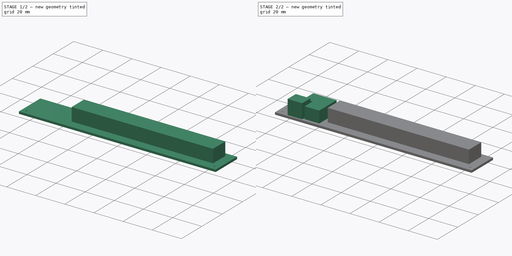
[diagram: build sequence overview — one tinted view per stage of 2, left to right]
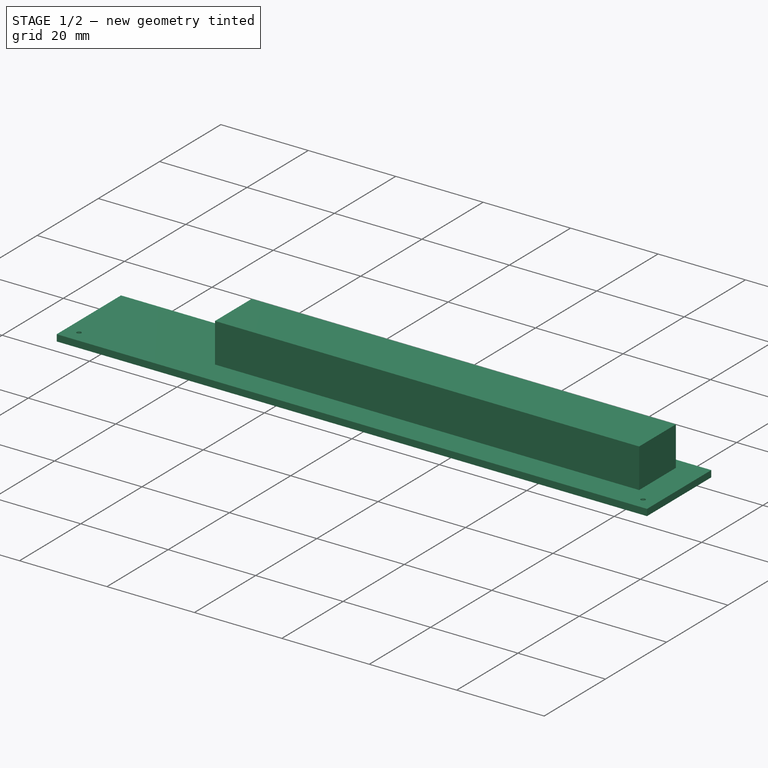
[diagram: stage 1 of 2 — iso view after this stage's code; geometry added in this stage tinted green]
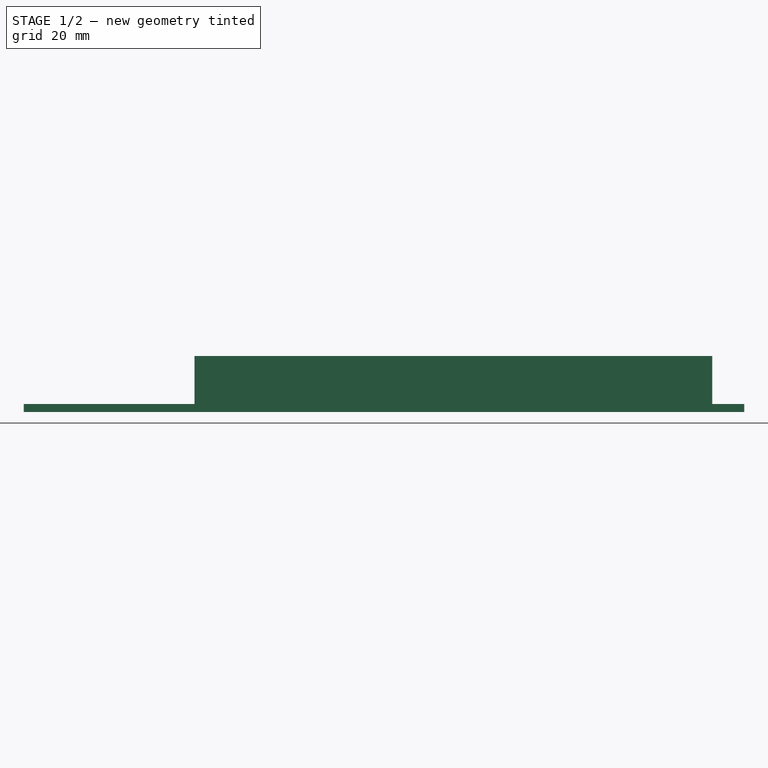
[diagram: stage 1 of 2 — front view after this stage's code; geometry added in this stage tinted green]
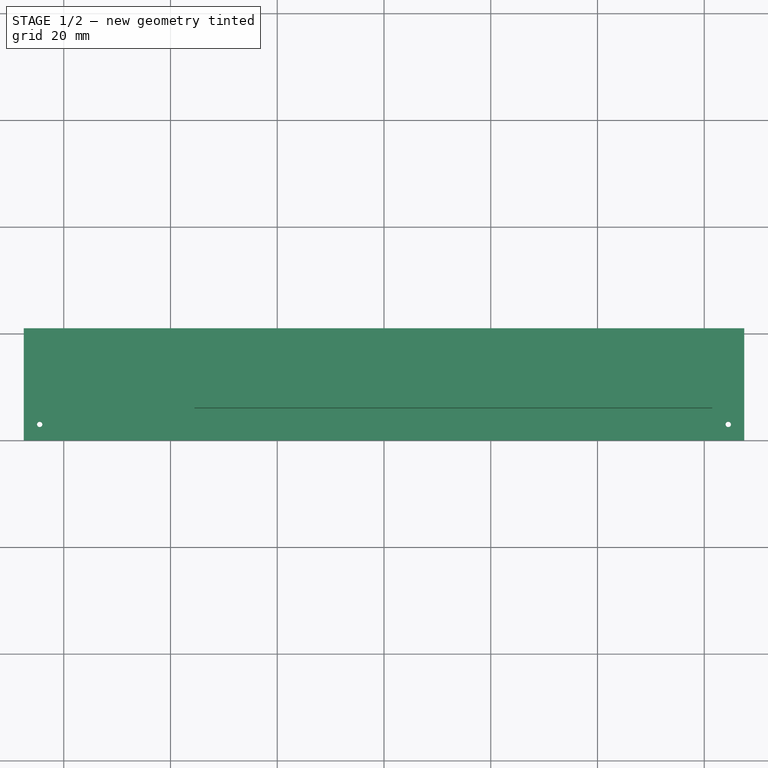
[diagram: stage 1 of 2 — top view after this stage's code; geometry added in this stage tinted green]
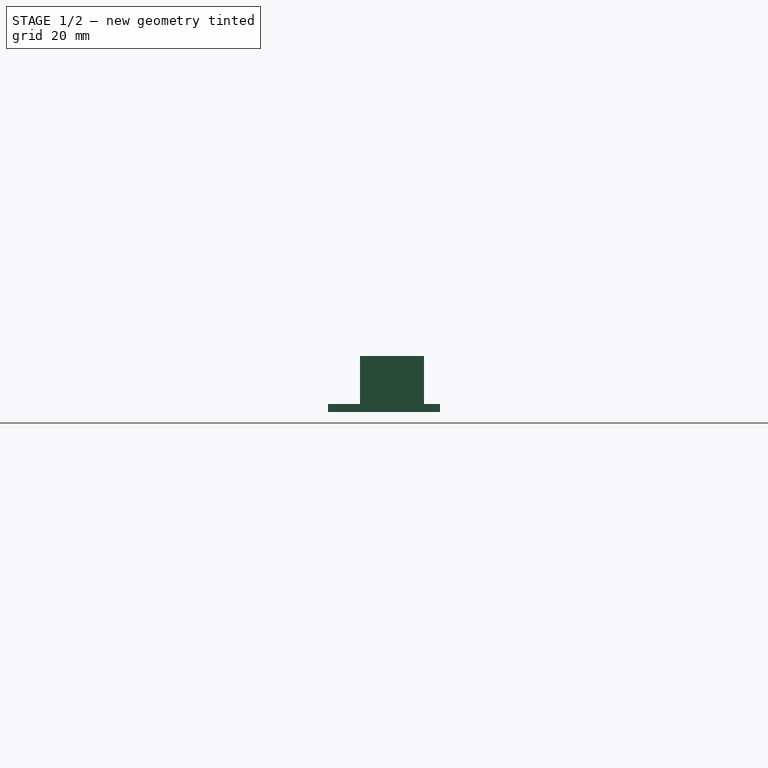
[diagram: stage 1 of 2 — right view after this stage's code; geometry added in this stage tinted green]
FCSTD DOCUMENT  (FreeCAD 0.19R)
Label: pianopcb
License: All rights reserved
LicenseURL: http://en.wikipedia.org/wiki/All_rights_reserved
objects: Sketcher::SketchObject×4, PartDesign::Pad×4, PartDesign::Body×1
note: 13 computed .brp shape members not serialized (recipe doc carries the construction recipe); baked Part::Feature solids carry a one-line shape summary decoded from their .brp

FEATURE [Sketcher::SketchObject] Sketch
  FullyConstrained = true
  MapMode = 5
  Support = -> [XY_Plane]
  sketch-geometry (6):
    g0: LineSegment StartX=-67.5 StartY=21 StartZ=0 EndX=67.5 EndY=21 EndZ=0
    g1: LineSegment StartX=67.5 StartY=21 StartZ=0 EndX=67.5 EndY=0 EndZ=0
    g2: LineSegment StartX=67.5 StartY=0 StartZ=0 EndX=-67.5 EndY=0 EndZ=0
    g3: LineSegment StartX=-67.5 StartY=0 StartZ=0 EndX=-67.5 EndY=21 EndZ=0
    g4: Circle CenterX=-64.5 CenterY=3 CenterZ=0 NormalX=0 NormalY=0 NormalZ=1 AngleXU=0 Radius=0.5
    g5: Circle CenterX=64.5 CenterY=3 CenterZ=0 NormalX=0 NormalY=0 NormalZ=1 AngleXU=0 Radius=0.5
  constraints (17):
    c: Coincident(g0,g1)
    c: Coincident(g1,g2)
    c: Coincident(g2,g3)
    c: Coincident(g3,g0)
    c: Horizontal(g0)
    c: Vertical(g1)
    c: Vertical(g3)
    c: PointOnObject(g2,g-1)
    c: Symmetric(g2,g1,g-2)
    c: DistanceX(g0,g0) = 135
    c: DistanceY(g1,g1) = 21
    c: Equal(g5,g4)
    c: Diameter(g5) = 1
    c: DistanceY(g2,g4) = 3
    c: DistanceX(g2,g4) = 3
    c: DistanceX(g5,g1) = 3
    c: DistanceY(g1,g5) = 3
FEATURE [PartDesign::Pad] Pad
  Direction = (1,1,1)
  Length = 1.5
  Length2 = 100
  Profile = -> Sketch
  Type = 0
FEATURE [Sketcher::SketchObject] Sketch001
  ExternalGeometry = -> [Pad]
  FullyConstrained = true
  MapMode = 5
  Placement = pos=(0,0,1.5) rot=(0,0,1;0rad)
  Support = -> [Pad]
  sketch-geometry (4):
    g0: LineSegment StartX=-35.5 StartY=18 StartZ=0 EndX=61.5 EndY=18 EndZ=0
    g1: LineSegment StartX=61.5 StartY=18 StartZ=0 EndX=61.5 EndY=6 EndZ=0
    g2: LineSegment StartX=61.5 StartY=6 StartZ=0 EndX=-35.5 EndY=6 EndZ=0
    g3: LineSegment StartX=-35.5 StartY=6 StartZ=0 EndX=-35.5 EndY=18 EndZ=0
  constraints (12):
    c: Coincident(g0,g1)
    c: Coincident(g1,g2)
    c: Coincident(g2,g3)
    c: Coincident(g3,g0)
    c: Horizontal(g0)
    c: Horizontal(g2)
    c: Vertical(g1)
    c: Vertical(g3)
    c: DistanceY(g1,g1) = 12
    c: DistanceX(g0,g0) = 97
    c: DistanceX(g1,g-3) = 6
    c: DistanceY(g-3,g1) = 6
FEATURE [PartDesign::Pad] Pad001
  BaseFeature = -> Pad
  Direction = (1,1,1)
  Length = 9
  Length2 = 100
  Profile = -> Sketch001
  Type = 0
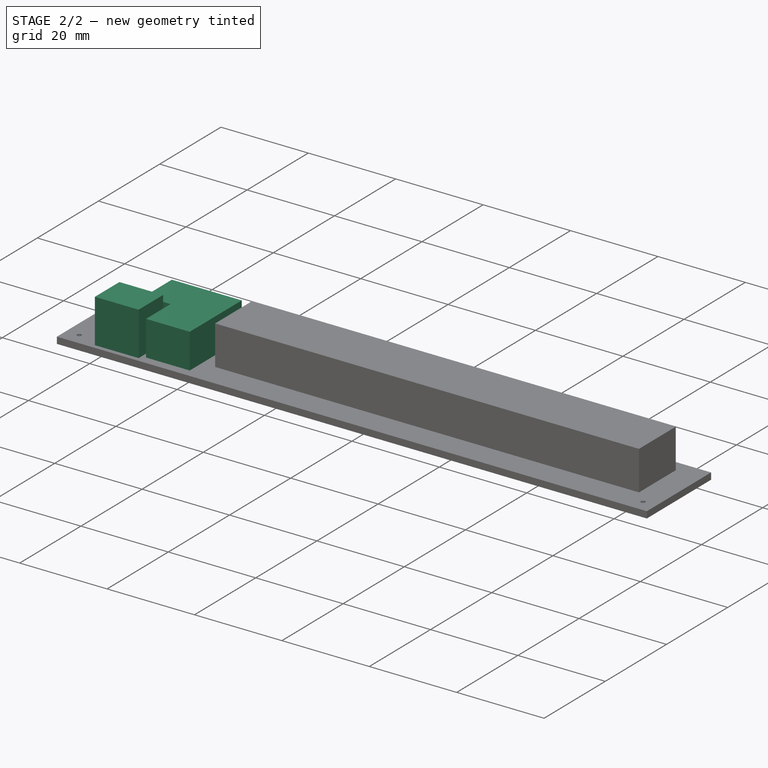
[diagram: stage 2 of 2 — iso view after this stage's code; geometry added in this stage tinted green]
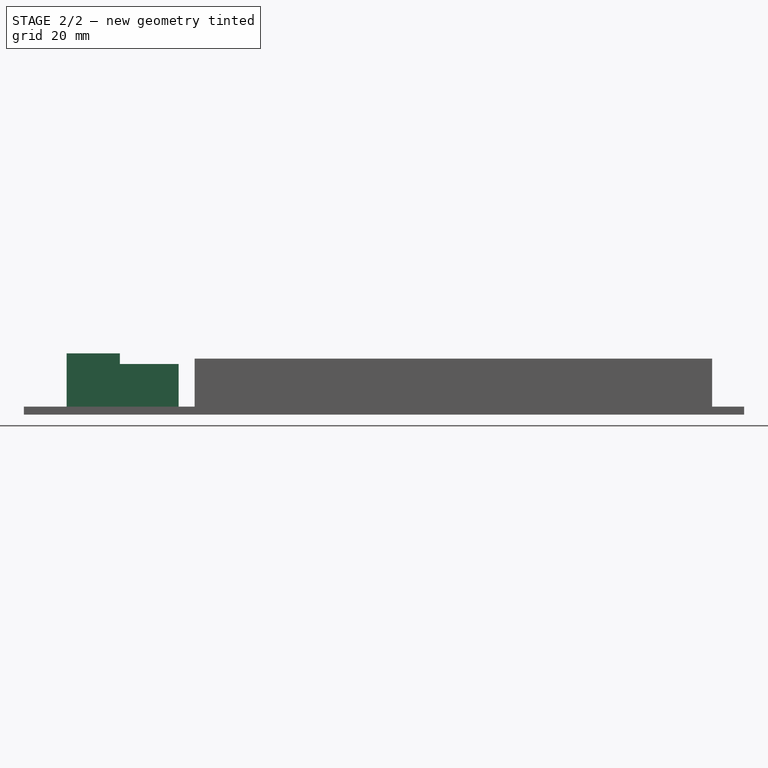
[diagram: stage 2 of 2 — front view after this stage's code; geometry added in this stage tinted green]
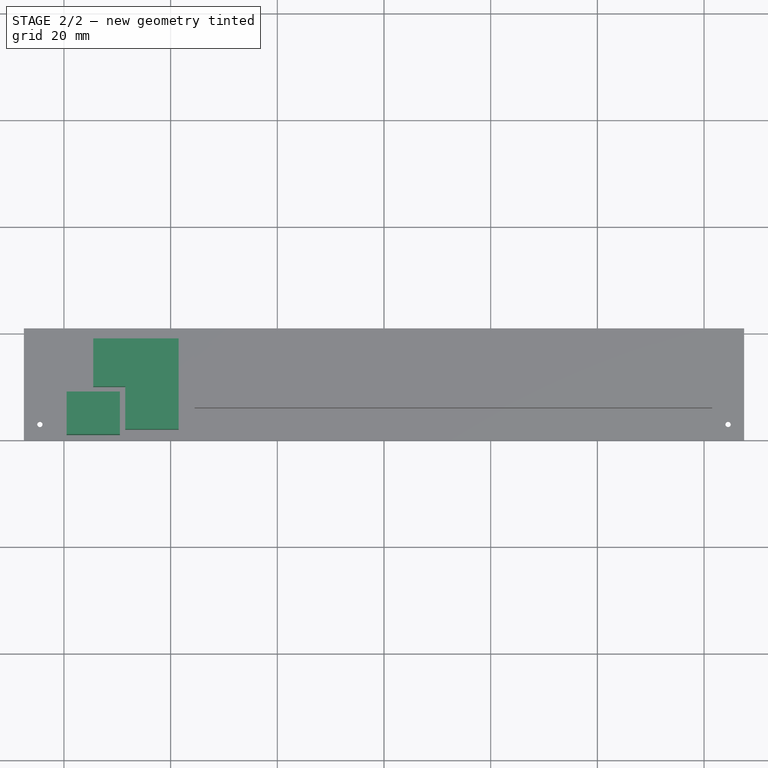
[diagram: stage 2 of 2 — top view after this stage's code; geometry added in this stage tinted green]
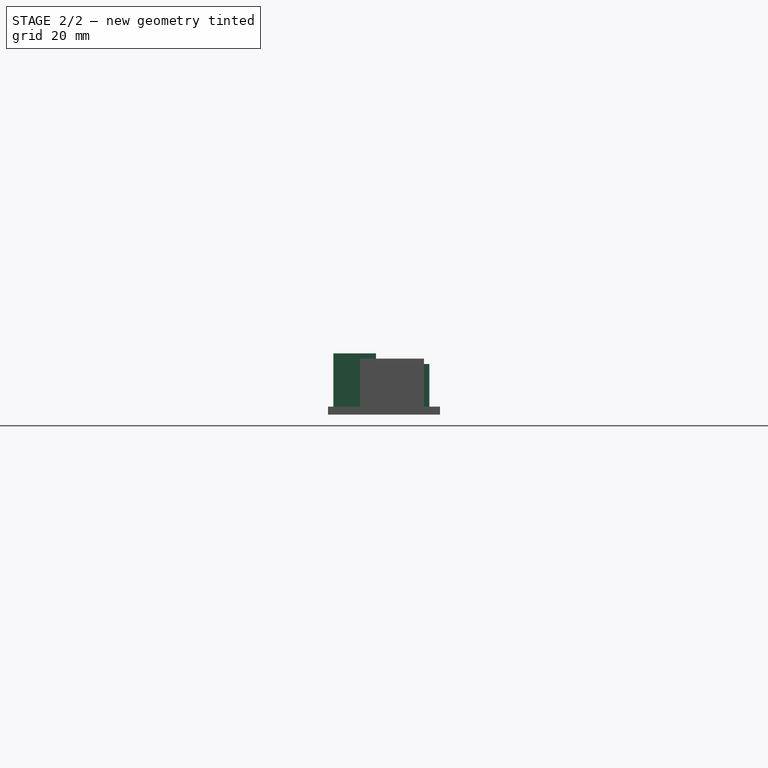
[diagram: stage 2 of 2 — right view after this stage's code; geometry added in this stage tinted green]
FEATURE [Sketcher::SketchObject] Sketch002
  ExternalGeometry = -> [Pad001]
  FullyConstrained = true
  MapMode = 5
  Placement = pos=(0,0,1.5) rot=(0,0,1;0rad)
  Support = -> [Pad001]
  sketch-geometry (4):
    g0: LineSegment StartX=-59.5 StartY=9 StartZ=0 EndX=-49.5 EndY=9 EndZ=0
    g1: LineSegment StartX=-49.5 StartY=9 StartZ=0 EndX=-49.5 EndY=1 EndZ=0
    g2: LineSegment StartX=-49.5 StartY=1 StartZ=0 EndX=-59.5 EndY=1 EndZ=0
    g3: LineSegment StartX=-59.5 StartY=1 StartZ=0 EndX=-59.5 EndY=9 EndZ=0
  constraints (12):
    c: Coincident(g0,g1)
    c: Coincident(g1,g2)
    c: Coincident(g2,g3)
    c: Coincident(g3,g0)
    c: Horizontal(g0)
    c: Horizontal(g2)
    c: Vertical(g1)
    c: Vertical(g3)
    c: DistanceX(g2,g2) = 10
    c: DistanceY(g1,g1) = 8
    c: DistanceX(g-3,g2) = 8
    c: DistanceY(g-3,g2) = 1
FEATURE [PartDesign::Pad] Pad002
  BaseFeature = -> Pad001
  Direction = (1,1,1)
  Length = 10
  Length2 = 100
  Profile = -> Sketch002
  Type = 0
FEATURE [Sketcher::SketchObject] Sketch003
  ExternalGeometry = -> [Pad002]
  FullyConstrained = true
  MapMode = 5
  Placement = pos=(0,0,1.5) rot=(0,0,1;0rad)
  Support = -> [Pad002]
  sketch-geometry (6):
    g0: LineSegment StartX=-54.5 StartY=10 StartZ=0 EndX=-48.5 EndY=10 EndZ=0
    g1: LineSegment StartX=-48.5 StartY=10 StartZ=0 EndX=-48.5 EndY=2 EndZ=0
    g2: LineSegment StartX=-48.5 StartY=2 StartZ=0 EndX=-38.5 EndY=2 EndZ=0
    g3: LineSegment StartX=-38.5 StartY=2 StartZ=0 EndX=-38.5 EndY=19 EndZ=0
    g4: LineSegment StartX=-38.5 StartY=19 StartZ=0 EndX=-54.5 EndY=19 EndZ=0
    g5: LineSegment StartX=-54.5 StartY=19 StartZ=0 EndX=-54.5 EndY=10 EndZ=0
  constraints (18):
    c: Horizontal(g0)
    c: Coincident(g0,g1)
    c: Vertical(g1)
    c: Coincident(g1,g2)
    c: Horizontal(g2)
    c: Coincident(g2,g3)
    c: Vertical(g3)
    c: Coincident(g3,g4)
    c: Horizontal(g4)
    c: Coincident(g4,g5)
    c: Vertical(g5)
    c: Coincident(g0,g5)
    c: DistanceX(g2,g-3) = 3
    c: DistanceY(g2,g-3) = 4
    c: DistanceY(g3,g3) = 17
    c: DistanceX(g4,g4) = 16
    c: DistanceX(g0,g0) = 6
    c: DistanceY(g1,g1) = 8
FEATURE [PartDesign::Pad] Pad003
  BaseFeature = -> Pad002
  Direction = (1,1,1)
  Length = 8
  Length2 = 100
  Profile = -> Sketch003
  Type = 0
FEATURE [PartDesign::Body] Body
  Group = -> [Sketch,Pad,Sketch001,Pad001,Sketch002,Pad002,Sketch003,Pad003]
  Origin = -> Origin
  Tip = -> Pad003
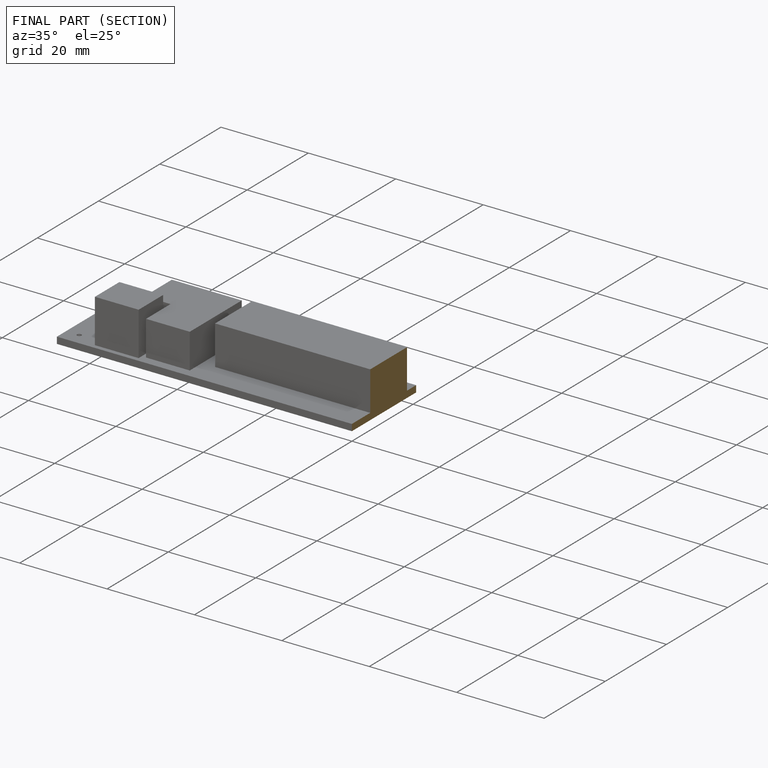
[diagram: finished part — half-section view (interior)]
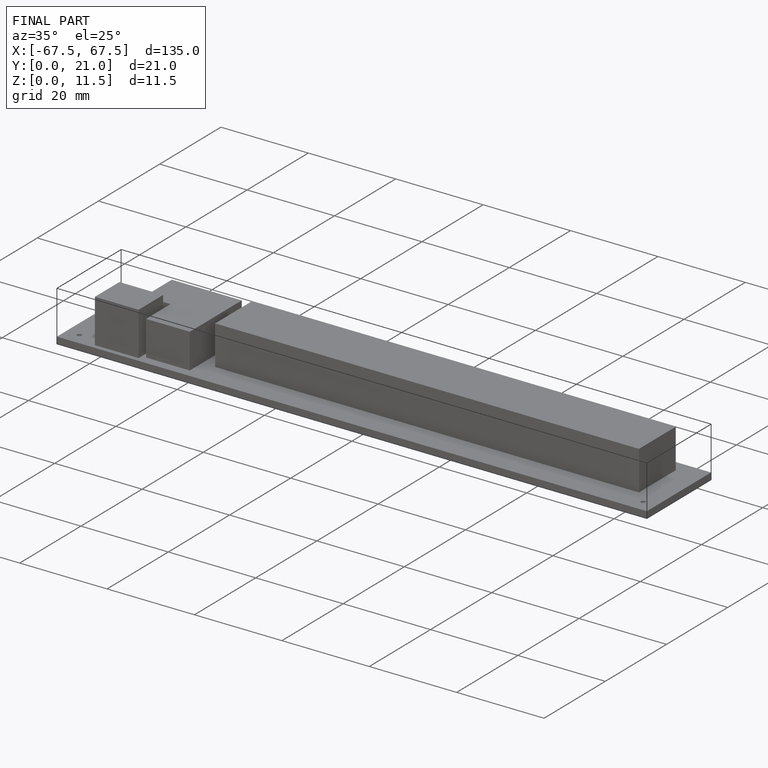
[diagram: finished part — iso view with bounding-box wireframe]
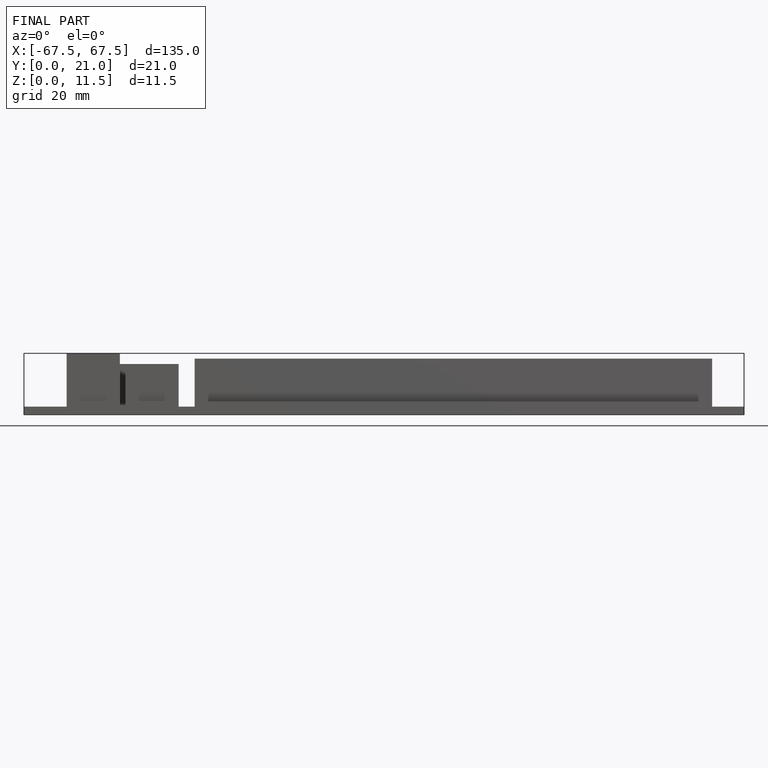
[diagram: finished part — front view with bounding-box wireframe]
